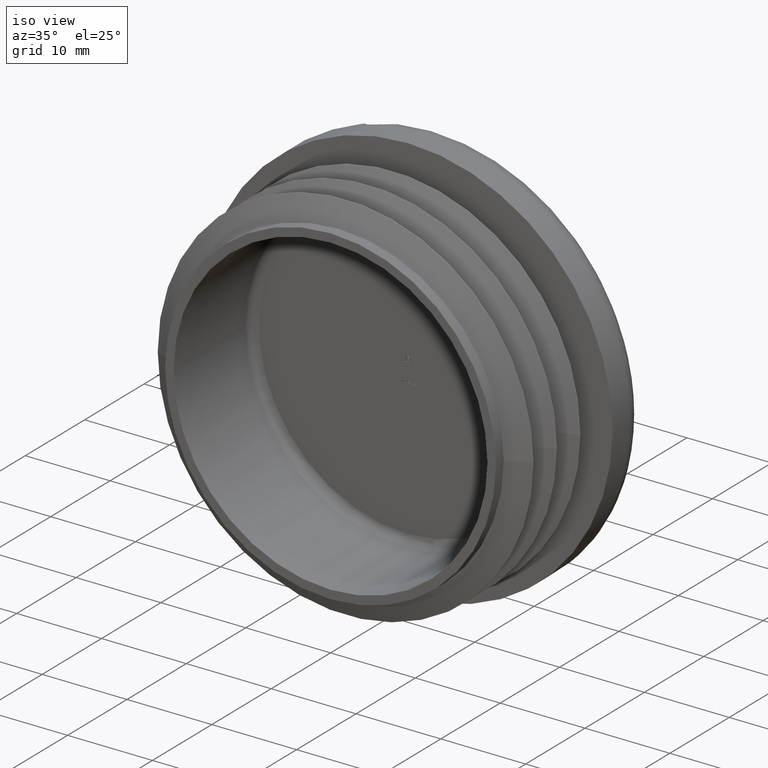
[diagram: clean part render]
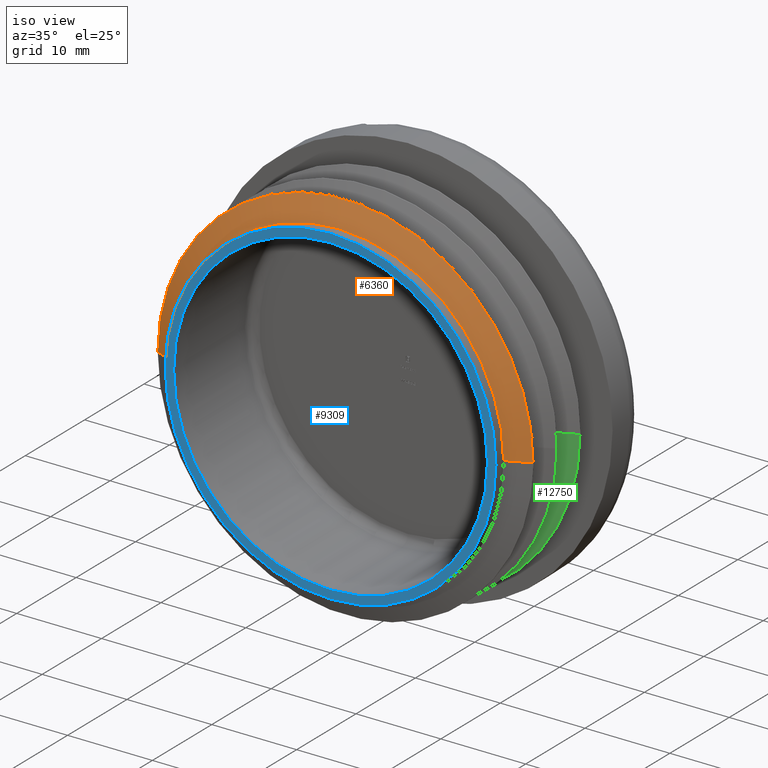
[diagram: same view with three faces highlighted in distinct colors, each labeled with its STEP entity id]
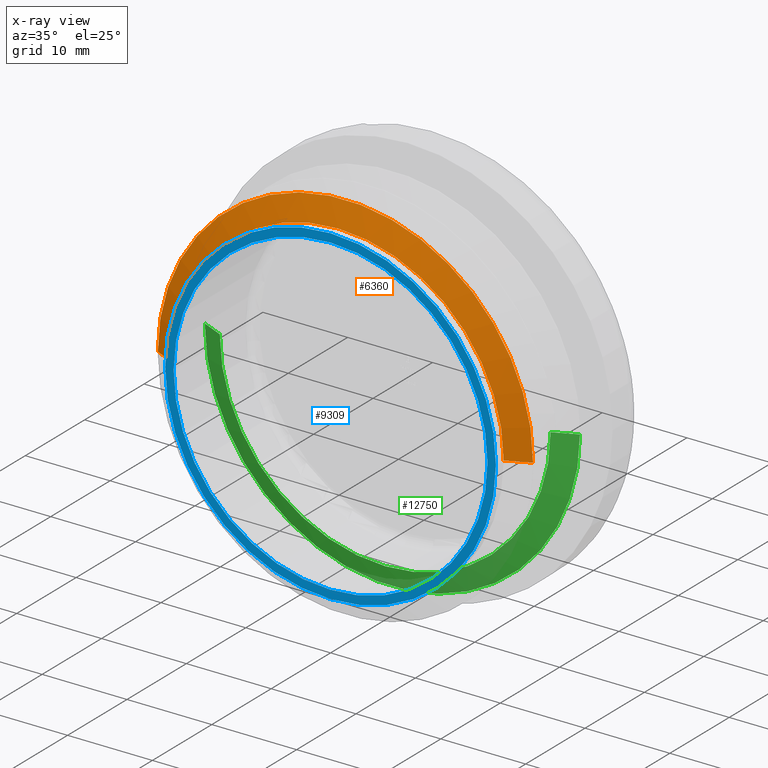
[diagram: x-ray of the same camera — body ghosted, the three highlighted faces saturated]
A machine part, iso view with three faces highlighted in distinct colors.
The next image is the same camera in x-ray (body ghosted, the three faces saturated) — at least one of them is partly hidden behind the body in this view.
Their STEP definitions:

[orange] entity #6360 — the highlighted conical surface has half-angle 65.316 deg.
#184 = ORIENTED_EDGE ( 'NONE', *, *, #1278, .T. ) ;
#1278 = EDGE_CURVE ( 'NONE', #9503, #10345, #10996, .T. ) ;
#1559 = ORIENTED_EDGE ( 'NONE', *, *, #9917, .T. ) ;
#1715 = CARTESIAN_POINT ( 'NONE',  ( 19.50000000000008171, 1.300000000000000044, 2.388061258337350772E-15 ) ) ;
#2445 = VECTOR ( 'NONE', #11264, 1000.000000000000227 ) ;
#2658 = EDGE_CURVE ( 'NONE', #5487, #5106, #11977, .T. ) ;
#2833 = ORIENTED_EDGE ( 'NONE', *, *, #5541, .T. ) ;
#3017 = AXIS2_PLACEMENT_3D ( 'NONE', #6082, #11394, #13676 ) ;
#3103 = EDGE_CURVE ( 'NONE', #9503, #7402, #9125, .T. ) ;
#3140 = CIRCLE ( 'NONE', #4472, 22.12088045224080446 ) ;
#3321 = AXIS2_PLACEMENT_3D ( 'NONE', #5143, #3559, #6746 ) ;
#3559 = DIRECTION ( 'NONE',  ( -1.047444401652940007E-14, 1.000000000000000000, 0.000000000000000000 ) ) ;
#3964 = DIRECTION ( 'NONE',  ( 1.000000000000000000, 1.046909432664306779E-14, 0.000000000000000000 ) ) ;
#4472 = AXIS2_PLACEMENT_3D ( 'NONE', #7297, #8454, #3964 ) ;
#5106 = VERTEX_POINT ( 'NONE', #6822 ) ;
#5143 = CARTESIAN_POINT ( 'NONE',  ( -1.361677722148561053E-14, 1.299999999999750910, 0.000000000000000000 ) ) ;
#5487 = VERTEX_POINT ( 'NONE', #6153 ) ;
#5508 = FACE_OUTER_BOUND ( 'NONE', #8086, .T. ) ;
#5541 = EDGE_CURVE ( 'NONE', #10345, #5487, #13472, .T. ) ;
#5545 = VECTOR ( 'NONE', #11592, 1000.000000000000227 ) ;
#5691 = CARTESIAN_POINT ( 'NONE',  ( -1.361677722148607912E-14, 1.299999999999795763, 0.000000000000000000 ) ) ;
#6082 = CARTESIAN_POINT ( 'NONE',  ( -1.361677722148561053E-14, 1.299999999999750910, 0.000000000000000000 ) ) ;
#6153 = CARTESIAN_POINT ( 'NONE',  ( 19.49999999999998579, 1.299999999999955191, 2.548543901176567384E-15 ) ) ;
#6360 = ADVANCED_FACE ( 'NONE', ( #5508 ), #13115, .T. ) ;
#6746 = DIRECTION ( 'NONE',  ( -1.000000000000000000, -1.047506098955225762E-14, 0.000000000000000000 ) ) ;
#6798 = DIRECTION ( 'NONE',  ( -1.000000000000000000, -1.047506098955220713E-14, 0.000000000000000000 ) ) ;
#6822 = CARTESIAN_POINT ( 'NONE',  ( 22.12088045224077604, 2.504568659339373227, 2.709026544015795435E-15 ) ) ;
#7297 = CARTESIAN_POINT ( 'NONE',  ( -2.623396420780193695E-14, 2.504568659339141856, 0.000000000000000000 ) ) ;
#7402 = VERTEX_POINT ( 'NONE', #8655 ) ;
#7788 = ORIENTED_EDGE ( 'NONE', *, *, #2658, .T. ) ;
#8086 = EDGE_LOOP ( 'NONE', ( #184, #2833, #7788, #1559, #13713 ) ) ;
#8387 = CARTESIAN_POINT ( 'NONE',  ( -19.50000000000011013, 1.299999999999591482, 0.000000000000000000 ) ) ;
#8454 = DIRECTION ( 'NONE',  ( 1.047444401652940007E-14, -1.000000000000000000, -0.000000000000000000 ) ) ;
#8655 = CARTESIAN_POINT ( 'NONE',  ( -22.12088045224082933, 2.504568659338910486, 0.000000000000000000 ) ) ;
#9012 = DIRECTION ( 'NONE',  ( -1.047444401652940007E-14, 1.000000000000000000, 0.000000000000000000 ) ) ;
#9125 = LINE ( 'NONE', #8387, #5545 ) ;
#9503 = VERTEX_POINT ( 'NONE', #11813 ) ;
#9917 = EDGE_CURVE ( 'NONE', #5106, #7402, #3140, .T. ) ;
#10345 = VERTEX_POINT ( 'NONE', #10757 ) ;
#10757 = CARTESIAN_POINT ( 'NONE',  ( 2.388061258337339728E-15, 1.299999999999750910, 19.50000000000000000 ) ) ;
#10996 = CIRCLE ( 'NONE', #3017, 19.50000000000000000 ) ;
#11264 = DIRECTION ( 'NONE',  ( 0.9086268132129853292, 0.4176090448139439526, 1.112746918420747700E-16 ) ) ;
#11278 = AXIS2_PLACEMENT_3D ( 'NONE', #5691, #9012, #6798 ) ;
#11394 = DIRECTION ( 'NONE',  ( -1.047444401652940007E-14, 1.000000000000000000, 0.000000000000000000 ) ) ;
#11592 = DIRECTION ( 'NONE',  ( -0.9086268132129939890, 0.4176090448139249678, 0.000000000000000000 ) ) ;
#11813 = CARTESIAN_POINT ( 'NONE',  ( -19.50000000000001421, 1.299999999999546851, 0.000000000000000000 ) ) ;
#11977 = LINE ( 'NONE', #1715, #2445 ) ;
#13115 = CONICAL_SURFACE ( 'NONE', #11278, 19.50000000000009592, 1.139983996948041645 ) ;
#13472 = CIRCLE ( 'NONE', #3321, 19.50000000000000000 ) ;
#13676 = DIRECTION ( 'NONE',  ( -1.000000000000000000, -1.047506098955225762E-14, 0.000000000000000000 ) ) ;
#13713 = ORIENTED_EDGE ( 'NONE', *, *, #3103, .F. ) ;

[blue] entity #9309 — the highlighted planar face has unit normal (0, -1, -0).
#143 = AXIS2_PLACEMENT_3D ( 'NONE', #7909, #13343, #2508 ) ;
#207 = AXIS2_PLACEMENT_3D ( 'NONE', #8832, #7470, #13999 ) ;
#538 = EDGE_CURVE ( 'NONE', #2708, #1826, #2652, .T. ) ;
#826 = CARTESIAN_POINT ( 'NONE',  ( 0.000000000000000000, 0.000000000000000000, -18.50000000000000000 ) ) ;
#1309 = AXIS2_PLACEMENT_3D ( 'NONE', #1941, #6242, #13699 ) ;
#1826 = VERTEX_POINT ( 'NONE', #11389 ) ;
#1941 = CARTESIAN_POINT ( 'NONE',  ( 0.000000000000000000, 0.000000000000000000, 0.000000000000000000 ) ) ;
#2508 = DIRECTION ( 'NONE',  ( 0.000000000000000000, 0.000000000000000000, -1.000000000000000000 ) ) ;
#2652 = CIRCLE ( 'NONE', #3781, 19.50000000000000000 ) ;
#2708 = VERTEX_POINT ( 'NONE', #10231 ) ;
#3582 = DIRECTION ( 'NONE',  ( -0.000000000000000000, -1.000000000000000000, -0.000000000000000000 ) ) ;
#3781 = AXIS2_PLACEMENT_3D ( 'NONE', #12016, #12161, #13249 ) ;
#3802 = EDGE_CURVE ( 'NONE', #1826, #2708, #9809, .T. ) ;
#3864 = FACE_OUTER_BOUND ( 'NONE', #6221, .T. ) ;
#4347 = CARTESIAN_POINT ( 'NONE',  ( 2.265596578422603396E-15, 0.000000000000000000, 18.50000000000000000 ) ) ;
#5831 = ORIENTED_EDGE ( 'NONE', *, *, #6703, .F. ) ;
#6063 = ORIENTED_EDGE ( 'NONE', *, *, #10193, .F. ) ;
#6221 = EDGE_LOOP ( 'NONE', ( #13868, #6442 ) ) ;
#6242 = DIRECTION ( 'NONE',  ( -0.000000000000000000, -1.000000000000000000, -0.000000000000000000 ) ) ;
#6442 = ORIENTED_EDGE ( 'NONE', *, *, #3802, .T. ) ;
#6703 = EDGE_CURVE ( 'NONE', #9980, #11595, #12106, .T. ) ;
#6800 = PLANE ( 'NONE',  #143 ) ;
#6848 = EDGE_LOOP ( 'NONE', ( #6063, #5831 ) ) ;
#6907 = CIRCLE ( 'NONE', #1309, 18.50000000000000000 ) ;
#7470 = DIRECTION ( 'NONE',  ( -0.000000000000000000, -1.000000000000000000, -0.000000000000000000 ) ) ;
#7909 = CARTESIAN_POINT ( 'NONE',  ( 19.50000000000000000, -1.071565949253935012E-16, 0.000000000000000000 ) ) ;
#8535 = DIRECTION ( 'NONE',  ( 0.000000000000000000, 0.000000000000000000, -1.000000000000000000 ) ) ;
#8832 = CARTESIAN_POINT ( 'NONE',  ( 0.000000000000000000, 0.000000000000000000, 0.000000000000000000 ) ) ;
#9169 = CARTESIAN_POINT ( 'NONE',  ( 0.000000000000000000, 0.000000000000000000, 0.000000000000000000 ) ) ;
#9309 = ADVANCED_FACE ( 'NONE', ( #3864, #11841 ), #6800, .T. ) ;
#9809 = CIRCLE ( 'NONE', #207, 19.50000000000000000 ) ;
#9980 = VERTEX_POINT ( 'NONE', #4347 ) ;
#10193 = EDGE_CURVE ( 'NONE', #11595, #9980, #6907, .T. ) ;
#10231 = CARTESIAN_POINT ( 'NONE',  ( 0.000000000000000000, 0.000000000000000000, -19.50000000000000000 ) ) ;
#11389 = CARTESIAN_POINT ( 'NONE',  ( 2.388061258337338939E-15, 0.000000000000000000, 19.50000000000000000 ) ) ;
#11595 = VERTEX_POINT ( 'NONE', #826 ) ;
#11717 = AXIS2_PLACEMENT_3D ( 'NONE', #9169, #3582, #8535 ) ;
#11841 = FACE_BOUND ( 'NONE', #6848, .T. ) ;
#12016 = CARTESIAN_POINT ( 'NONE',  ( 0.000000000000000000, 0.000000000000000000, 0.000000000000000000 ) ) ;
#12106 = CIRCLE ( 'NONE', #11717, 18.50000000000000000 ) ;
#12161 = DIRECTION ( 'NONE',  ( -0.000000000000000000, -1.000000000000000000, -0.000000000000000000 ) ) ;
#13249 = DIRECTION ( 'NONE',  ( 0.000000000000000000, 0.000000000000000000, -1.000000000000000000 ) ) ;
#13343 = DIRECTION ( 'NONE',  ( 0.000000000000000000, -1.000000000000000000, -0.000000000000000000 ) ) ;
#13699 = DIRECTION ( 'NONE',  ( 0.000000000000000000, 0.000000000000000000, -1.000000000000000000 ) ) ;
#13868 = ORIENTED_EDGE ( 'NONE', *, *, #538, .T. ) ;
#13999 = DIRECTION ( 'NONE',  ( 0.000000000000000000, 0.000000000000000000, -1.000000000000000000 ) ) ;

[green] entity #12750 — the highlighted conical surface has half-angle 65.316 deg.
#196 = ORIENTED_EDGE ( 'NONE', *, *, #7583, .T. ) ;
#212 = DIRECTION ( 'NONE',  ( -1.047444401652940007E-14, 1.000000000000000000, 0.000000000000000000 ) ) ;
#887 = VERTEX_POINT ( 'NONE', #11809 ) ;
#1728 = AXIS2_PLACEMENT_3D ( 'NONE', #12234, #7930, #13411 ) ;
#1773 = CARTESIAN_POINT ( 'NONE',  ( 19.49999999999990408, 9.200000000000407852, 2.548543901176567384E-15 ) ) ;
#2253 = CONICAL_SURFACE ( 'NONE', #11326, 19.50000000000009592, 1.139983996948039868 ) ;
#2373 = VERTEX_POINT ( 'NONE', #1773 ) ;
#2765 = LINE ( 'NONE', #6846, #13129 ) ;
#2913 = CARTESIAN_POINT ( 'NONE',  ( 22.12088045224068722, 10.40456865933982833, 2.709026544015795041E-15 ) ) ;
#2993 = ORIENTED_EDGE ( 'NONE', *, *, #5369, .T. ) ;
#3026 = CARTESIAN_POINT ( 'NONE',  ( -1.089820719383889780E-13, 10.40456865933959740, 0.000000000000000000 ) ) ;
#3457 = EDGE_CURVE ( 'NONE', #2373, #6550, #6879, .T. ) ;
#3570 = DIRECTION ( 'NONE',  ( -0.9086268132129933228, 0.4176090448139265221, 0.000000000000000000 ) ) ;
#3601 = DIRECTION ( 'NONE',  ( -1.047444401652940007E-14, 1.000000000000000000, 0.000000000000000000 ) ) ;
#3757 = DIRECTION ( 'NONE',  ( 0.9086268132129846631, 0.4176090448139455069, 1.112746918420746960E-16 ) ) ;
#3841 = EDGE_CURVE ( 'NONE', #8304, #6550, #8103, .T. ) ;
#4028 = CIRCLE ( 'NONE', #11741, 19.50000000000000000 ) ;
#5261 = DIRECTION ( 'NONE',  ( 1.047444401652940007E-14, -1.000000000000000000, -0.000000000000000000 ) ) ;
#5369 = EDGE_CURVE ( 'NONE', #11330, #8304, #2765, .T. ) ;
#5783 = CARTESIAN_POINT ( 'NONE',  ( -9.636488495207260106E-14, 9.200000000000203570, 0.000000000000000000 ) ) ;
#6141 = CARTESIAN_POINT ( 'NONE',  ( 19.50000000000000000, 9.200000000000452260, 2.388061258337350772E-15 ) ) ;
#6550 = VERTEX_POINT ( 'NONE', #2913 ) ;
#6714 = CARTESIAN_POINT ( 'NONE',  ( -9.636488495207306807E-14, 9.200000000000247979, 0.000000000000000000 ) ) ;
#6770 = ORIENTED_EDGE ( 'NONE', *, *, #3457, .F. ) ;
#6846 = CARTESIAN_POINT ( 'NONE',  ( -19.50000000000019540, 9.200000000000043698, 0.000000000000000000 ) ) ;
#6879 = LINE ( 'NONE', #6141, #9472 ) ;
#7199 = FACE_OUTER_BOUND ( 'NONE', #10225, .T. ) ;
#7326 = ORIENTED_EDGE ( 'NONE', *, *, #3841, .T. ) ;
#7363 = CARTESIAN_POINT ( 'NONE',  ( -22.12088045224091104, 10.40456865933936648, 0.000000000000000000 ) ) ;
#7583 = EDGE_CURVE ( 'NONE', #887, #11330, #10762, .T. ) ;
#7764 = DIRECTION ( 'NONE',  ( -1.000000000000000000, -1.049730103411601215E-14, 0.000000000000000000 ) ) ;
#7930 = DIRECTION ( 'NONE',  ( -1.047444401652940007E-14, 1.000000000000000000, 0.000000000000000000 ) ) ;
#8035 = DIRECTION ( 'NONE',  ( -1.000000000000000000, -1.049730103411606421E-14, 0.000000000000000000 ) ) ;
#8103 = CIRCLE ( 'NONE', #12070, 22.12088045224080091 ) ;
#8304 = VERTEX_POINT ( 'NONE', #7363 ) ;
#9472 = VECTOR ( 'NONE', #3757, 1000.000000000000000 ) ;
#9639 = EDGE_CURVE ( 'NONE', #2373, #887, #4028, .T. ) ;
#10225 = EDGE_LOOP ( 'NONE', ( #6770, #11628, #196, #2993, #7326 ) ) ;
#10583 = DIRECTION ( 'NONE',  ( 1.000000000000000000, 1.050830441775409247E-14, 0.000000000000000000 ) ) ;
#10762 = CIRCLE ( 'NONE', #1728, 19.50000000000000000 ) ;
#11326 = AXIS2_PLACEMENT_3D ( 'NONE', #6714, #212, #7764 ) ;
#11330 = VERTEX_POINT ( 'NONE', #12263 ) ;
#11628 = ORIENTED_EDGE ( 'NONE', *, *, #9639, .T. ) ;
#11741 = AXIS2_PLACEMENT_3D ( 'NONE', #5783, #3601, #8035 ) ;
#11809 = CARTESIAN_POINT ( 'NONE',  ( -2.144715586069625846E-27, 9.200000000000203570, -19.50000000000000000 ) ) ;
#12070 = AXIS2_PLACEMENT_3D ( 'NONE', #3026, #5261, #10583 ) ;
#12234 = CARTESIAN_POINT ( 'NONE',  ( -9.636488495207260106E-14, 9.200000000000203570, 0.000000000000000000 ) ) ;
#12263 = CARTESIAN_POINT ( 'NONE',  ( -19.50000000000009592, 9.199999999999997513, 0.000000000000000000 ) ) ;
#12750 = ADVANCED_FACE ( 'NONE', ( #7199 ), #2253, .T. ) ;
#13129 = VECTOR ( 'NONE', #3570, 1000.000000000000227 ) ;
#13411 = DIRECTION ( 'NONE',  ( -1.000000000000000000, -1.049730103411606421E-14, 0.000000000000000000 ) ) ;